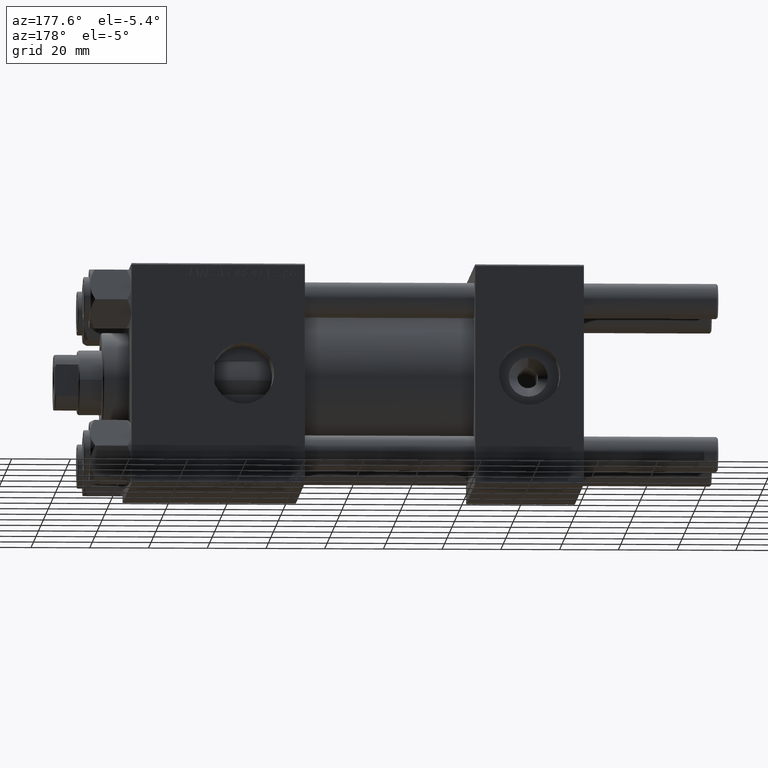
[diagram: clean part render]
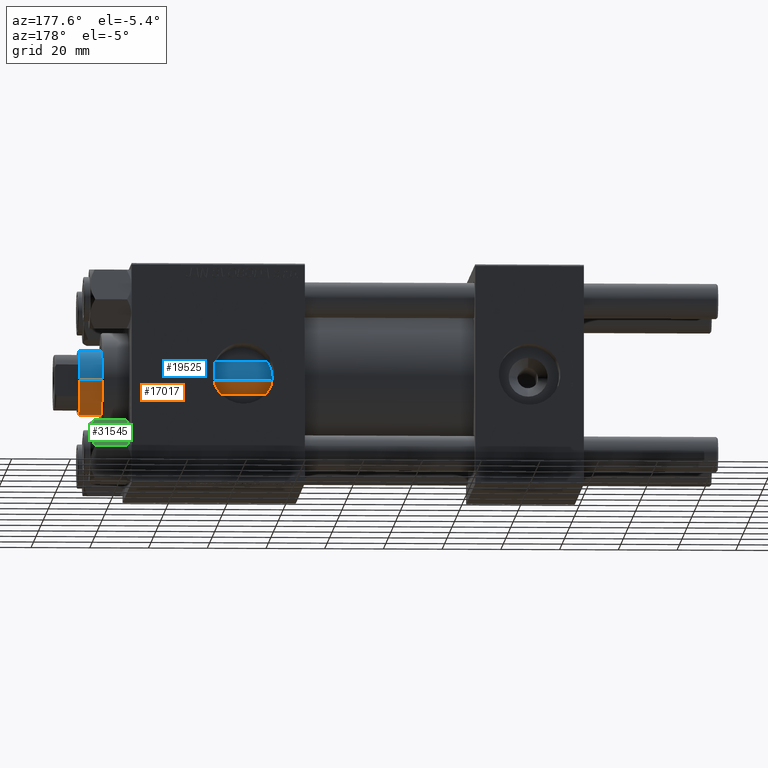
[diagram: same view with three faces highlighted in distinct colors, each labeled with its STEP entity id]
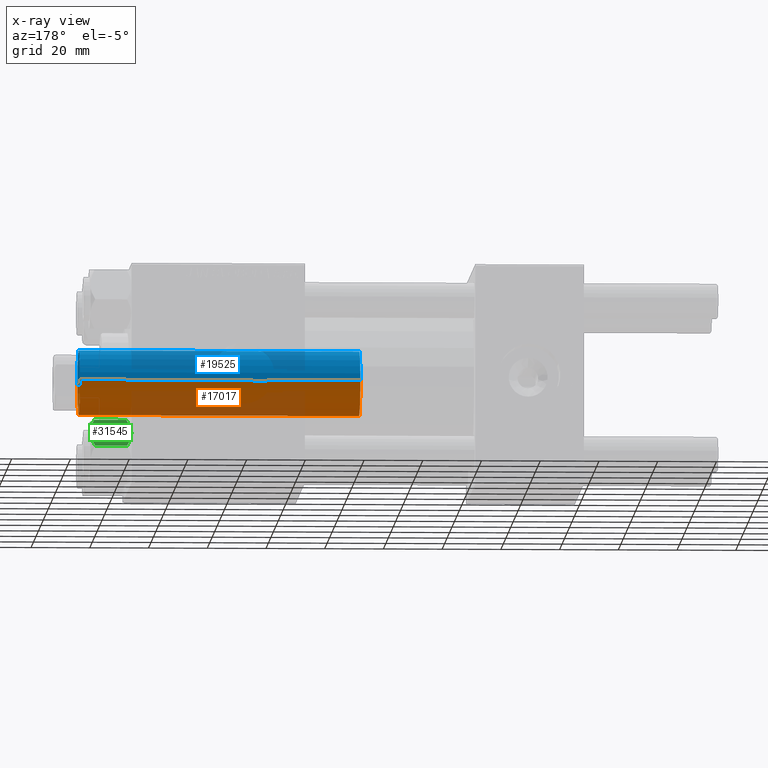
[diagram: x-ray of the same camera — body ghosted, the three highlighted faces saturated]
A machine part, auxiliary view with three faces highlighted in distinct colors.
The next image is the same camera in x-ray (body ghosted, the three faces saturated) — at least one of them is partly hidden behind the body in this view.
Their STEP definitions:

[orange] entity #17017 — the highlighted cylindrical surface (edge-blend (fillet) strip) has radius 11 mm, axis along (-1, 0, 0).
#2279 = VERTEX_POINT ( 'NONE', #15324 ) ;
#3257 = ORIENTED_EDGE ( 'NONE', *, *, #25024, .F. ) ;
#4640 = DIRECTION ( 'NONE',  ( 1.000000000000000000, 0.000000000000000000, 0.000000000000000000 ) ) ;
#6904 = ORIENTED_EDGE ( 'NONE', *, *, #15245, .T. ) ;
#9842 = ORIENTED_EDGE ( 'NONE', *, *, #24039, .T. ) ;
#9852 = VERTEX_POINT ( 'NONE', #18727 ) ;
#11437 = LINE ( 'NONE', #26384, #35604 ) ;
#11529 = VERTEX_POINT ( 'NONE', #35917 ) ;
#12128 = AXIS2_PLACEMENT_3D ( 'NONE', #44595, #37499, #26123 ) ;
#12258 = DIRECTION ( 'NONE',  ( -0.000000000000000000, -0.000000000000000000, -1.000000000000000000 ) ) ;
#15245 = EDGE_CURVE ( 'NONE', #2279, #23155, #39342, .T. ) ;
#15324 = CARTESIAN_POINT ( 'NONE',  ( 11.00000000000000000, 1.347111479062088405E-15, 133.5000000000000000 ) ) ;
#17017 = ADVANCED_FACE ( 'NONE', ( #25153 ), #24907, .T. ) ;
#17550 = CARTESIAN_POINT ( 'NONE',  ( 0.000000000000000000, 0.000000000000000000, 134.0000000000000000 ) ) ;
#18363 = ORIENTED_EDGE ( 'NONE', *, *, #45110, .T. ) ;
#18727 = CARTESIAN_POINT ( 'NONE',  ( -11.00000000000000000, 0.000000000000000000, 133.5000000000000000 ) ) ;
#20109 = CARTESIAN_POINT ( 'NONE',  ( 11.00000000000000000, 1.347111479062088405E-15, 134.0000000000000000 ) ) ;
#21720 = CIRCLE ( 'NONE', #42746, 11.00000000000000000 ) ;
#21997 = CARTESIAN_POINT ( 'NONE',  ( 11.00000000000000000, 1.347111479062088405E-15, 38.00000000000000000 ) ) ;
#23155 = VERTEX_POINT ( 'NONE', #21997 ) ;
#24039 = EDGE_CURVE ( 'NONE', #23155, #11529, #46056, .T. ) ;
#24907 = CYLINDRICAL_SURFACE ( 'NONE', #42723, 11.00000000000000000 ) ;
#25024 = EDGE_CURVE ( 'NONE', #9852, #11529, #11437, .T. ) ;
#25153 = FACE_OUTER_BOUND ( 'NONE', #36281, .T. ) ;
#26123 = DIRECTION ( 'NONE',  ( 1.000000000000000000, 0.000000000000000000, 0.000000000000000000 ) ) ;
#26384 = CARTESIAN_POINT ( 'NONE',  ( -11.00000000000000000, 0.000000000000000000, 134.0000000000000000 ) ) ;
#32989 = DIRECTION ( 'NONE',  ( -1.000000000000000000, 0.000000000000000000, 0.000000000000000000 ) ) ;
#35604 = VECTOR ( 'NONE', #41816, 1000.000000000000000 ) ;
#35917 = CARTESIAN_POINT ( 'NONE',  ( -11.00000000000000000, 0.000000000000000000, 38.00000000000000000 ) ) ;
#36281 = EDGE_LOOP ( 'NONE', ( #18363, #6904, #9842, #3257 ) ) ;
#37499 = DIRECTION ( 'NONE',  ( 0.000000000000000000, 0.000000000000000000, 1.000000000000000000 ) ) ;
#39318 = DIRECTION ( 'NONE',  ( 0.000000000000000000, 0.000000000000000000, -1.000000000000000000 ) ) ;
#39342 = LINE ( 'NONE', #20109, #49928 ) ;
#39827 = CARTESIAN_POINT ( 'NONE',  ( 0.000000000000000000, 0.000000000000000000, 133.5000000000000000 ) ) ;
#41816 = DIRECTION ( 'NONE',  ( -0.000000000000000000, -0.000000000000000000, -1.000000000000000000 ) ) ;
#42723 = AXIS2_PLACEMENT_3D ( 'NONE', #17550, #44874, #32989 ) ;
#42746 = AXIS2_PLACEMENT_3D ( 'NONE', #39827, #39318, #4640 ) ;
#44595 = CARTESIAN_POINT ( 'NONE',  ( 0.000000000000000000, 0.000000000000000000, 38.00000000000000000 ) ) ;
#44874 = DIRECTION ( 'NONE',  ( -0.000000000000000000, -0.000000000000000000, -1.000000000000000000 ) ) ;
#45110 = EDGE_CURVE ( 'NONE', #9852, #2279, #21720, .T. ) ;
#46056 = CIRCLE ( 'NONE', #12128, 11.00000000000000000 ) ;
#49928 = VECTOR ( 'NONE', #12258, 1000.000000000000000 ) ;

[blue] entity #19525 — the highlighted cylindrical surface (edge-blend (fillet) strip) has radius 11 mm, axis along (-1, 0, 0).
#2279 = VERTEX_POINT ( 'NONE', #15324 ) ;
#2990 = EDGE_LOOP ( 'NONE', ( #14944, #20106, #41269, #23965 ) ) ;
#4113 = FACE_OUTER_BOUND ( 'NONE', #2990, .T. ) ;
#7410 = DIRECTION ( 'NONE',  ( -1.000000000000000000, 0.000000000000000000, 0.000000000000000000 ) ) ;
#9852 = VERTEX_POINT ( 'NONE', #18727 ) ;
#11205 = AXIS2_PLACEMENT_3D ( 'NONE', #32754, #13501, #32255 ) ;
#11437 = LINE ( 'NONE', #26384, #35604 ) ;
#11529 = VERTEX_POINT ( 'NONE', #35917 ) ;
#12258 = DIRECTION ( 'NONE',  ( -0.000000000000000000, -0.000000000000000000, -1.000000000000000000 ) ) ;
#13501 = DIRECTION ( 'NONE',  ( 0.000000000000000000, 0.000000000000000000, -1.000000000000000000 ) ) ;
#14944 = ORIENTED_EDGE ( 'NONE', *, *, #15245, .F. ) ;
#15245 = EDGE_CURVE ( 'NONE', #2279, #23155, #39342, .T. ) ;
#15324 = CARTESIAN_POINT ( 'NONE',  ( 11.00000000000000000, 1.347111479062088405E-15, 133.5000000000000000 ) ) ;
#17120 = EDGE_CURVE ( 'NONE', #2279, #9852, #22534, .T. ) ;
#18274 = DIRECTION ( 'NONE',  ( 1.000000000000000000, 0.000000000000000000, 0.000000000000000000 ) ) ;
#18524 = CARTESIAN_POINT ( 'NONE',  ( 0.000000000000000000, 0.000000000000000000, 38.00000000000000000 ) ) ;
#18727 = CARTESIAN_POINT ( 'NONE',  ( -11.00000000000000000, 0.000000000000000000, 133.5000000000000000 ) ) ;
#19525 = ADVANCED_FACE ( 'NONE', ( #4113 ), #42084, .T. ) ;
#20106 = ORIENTED_EDGE ( 'NONE', *, *, #17120, .T. ) ;
#20109 = CARTESIAN_POINT ( 'NONE',  ( 11.00000000000000000, 1.347111479062088405E-15, 134.0000000000000000 ) ) ;
#21997 = CARTESIAN_POINT ( 'NONE',  ( 11.00000000000000000, 1.347111479062088405E-15, 38.00000000000000000 ) ) ;
#22342 = EDGE_CURVE ( 'NONE', #11529, #23155, #47652, .T. ) ;
#22534 = CIRCLE ( 'NONE', #11205, 11.00000000000000000 ) ;
#23155 = VERTEX_POINT ( 'NONE', #21997 ) ;
#23965 = ORIENTED_EDGE ( 'NONE', *, *, #22342, .T. ) ;
#25024 = EDGE_CURVE ( 'NONE', #9852, #11529, #11437, .T. ) ;
#26384 = CARTESIAN_POINT ( 'NONE',  ( -11.00000000000000000, 0.000000000000000000, 134.0000000000000000 ) ) ;
#32255 = DIRECTION ( 'NONE',  ( 1.000000000000000000, 0.000000000000000000, 0.000000000000000000 ) ) ;
#32754 = CARTESIAN_POINT ( 'NONE',  ( 0.000000000000000000, 0.000000000000000000, 133.5000000000000000 ) ) ;
#34477 = CARTESIAN_POINT ( 'NONE',  ( 0.000000000000000000, 0.000000000000000000, 134.0000000000000000 ) ) ;
#35604 = VECTOR ( 'NONE', #41816, 1000.000000000000000 ) ;
#35917 = CARTESIAN_POINT ( 'NONE',  ( -11.00000000000000000, 0.000000000000000000, 38.00000000000000000 ) ) ;
#38753 = AXIS2_PLACEMENT_3D ( 'NONE', #18524, #45084, #18274 ) ;
#39342 = LINE ( 'NONE', #20109, #49928 ) ;
#41173 = AXIS2_PLACEMENT_3D ( 'NONE', #34477, #46626, #7410 ) ;
#41269 = ORIENTED_EDGE ( 'NONE', *, *, #25024, .T. ) ;
#41816 = DIRECTION ( 'NONE',  ( -0.000000000000000000, -0.000000000000000000, -1.000000000000000000 ) ) ;
#42084 = CYLINDRICAL_SURFACE ( 'NONE', #41173, 11.00000000000000000 ) ;
#45084 = DIRECTION ( 'NONE',  ( 0.000000000000000000, 0.000000000000000000, 1.000000000000000000 ) ) ;
#46626 = DIRECTION ( 'NONE',  ( -0.000000000000000000, -0.000000000000000000, -1.000000000000000000 ) ) ;
#47652 = CIRCLE ( 'NONE', #38753, 11.00000000000000000 ) ;
#49928 = VECTOR ( 'NONE', #12258, 1000.000000000000000 ) ;

[green] entity #31545 — the highlighted planar face has unit normal (-0, -0.8135, -0.5816).
#1864 = AXIS2_PLACEMENT_3D ( 'NONE', #29934, #14234, #33706 ) ;
#3177 = ORIENTED_EDGE ( 'NONE', *, *, #10143, .T. ) ;
#3394 = CARTESIAN_POINT ( 'NONE',  ( -7.700834831386347723, 6.788193195293092508, -0.1903979688073504373 ) ) ;
#3725 = CARTESIAN_POINT ( 'NONE',  ( -5.810000000000003162, 10.06321519197517667, -1.556784808024824107 ) ) ;
#4157 = CARTESIAN_POINT ( 'NONE',  ( -11.61999999999999922, 6.036006524886462134E-17, -14.00000000000000000 ) ) ;
#4441 = CARTESIAN_POINT ( 'NONE',  ( -8.714999999999996305, 5.031607595987583004, -14.00000000000000000 ) ) ;
#4469 = LINE ( 'NONE', #11044, #42431 ) ;
#4862 = VERTEX_POINT ( 'NONE', #34359 ) ;
#6374 = CARTESIAN_POINT ( 'NONE',  ( -8.714999999999996305, 5.031607595987583004, 0.000000000000000000 ) ) ;
#7678 = CARTESIAN_POINT ( 'NONE',  ( -8.714999999999996305, 5.031607595987583004, 0.000000000000000000 ) ) ;
#7724 = CARTESIAN_POINT ( 'NONE',  ( -6.265018354709781079, 9.275100283241448196, -12.89823354668503974 ) ) ;
#8653 = VERTEX_POINT ( 'NONE', #14452 ) ;
#9336 = B_SPLINE_CURVE_WITH_KNOTS ( 'NONE', 3,
 ( #6374, #42054, #45082, #21814, #45842, #22318 ),
 .UNSPECIFIED., .F., .F.,
 ( 4, 2, 4 ),
 ( 0.006022845781655588975, 0.009013049135303633289, 0.01200325248895167847 ),
 .UNSPECIFIED. ) ;
#9664 = B_SPLINE_CURVE_WITH_KNOTS ( 'NONE', 3,
 ( #47770, #13079, #28773, #31832, #39669, #23972, #20437, #47511 ),
 .UNSPECIFIED., .F., .F.,
 ( 4, 2, 2, 4 ),
 ( 2.544312114905219494E-07, 0.003011550106433534719, 0.004517197944044558378, 0.006022845781655582036 ),
 .UNSPECIFIED. ) ;
#10143 = EDGE_CURVE ( 'NONE', #4862, #28549, #19341, .T. ) ;
#11044 = CARTESIAN_POINT ( 'NONE',  ( -5.810000000000003162, 10.06321519197517667, -14.00000000000000000 ) ) ;
#11212 = CARTESIAN_POINT ( 'NONE',  ( -7.455303369716808959, 7.213466161761383333, -0.3002673809867471566 ) ) ;
#11579 = VECTOR ( 'NONE', #30996, 1000.000000000000000 ) ;
#13075 = VERTEX_POINT ( 'NONE', #18902 ) ;
#13079 = CARTESIAN_POINT ( 'NONE',  ( -11.16445427487471775, 0.7890283410877965142, -12.89876091710046069 ) ) ;
#13757 = EDGE_CURVE ( 'NONE', #8653, #28549, #9336, .T. ) ;
#14234 = DIRECTION ( 'NONE',  ( 0.8660254037844388186, -0.4999999999999996669, 0.000000000000000000 ) ) ;
#14452 = CARTESIAN_POINT ( 'NONE',  ( -8.714999999999996305, 5.031607595987583004, 0.000000000000000000 ) ) ;
#14895 = VERTEX_POINT ( 'NONE', #3725 ) ;
#15687 = ORIENTED_EDGE ( 'NONE', *, *, #43710, .F. ) ;
#15748 = EDGE_LOOP ( 'NONE', ( #35623, #3177, #21789, #25963, #18427, #15687 ) ) ;
#18324 = CARTESIAN_POINT ( 'NONE',  ( -6.731401448974991375, 8.467301068182912616, -0.7141438259524754972 ) ) ;
#18427 = ORIENTED_EDGE ( 'NONE', *, *, #36274, .F. ) ;
#18902 = CARTESIAN_POINT ( 'NONE',  ( -5.810000000000004050, 10.06321519197517667, -12.44321519197517745 ) ) ;
#19341 = LINE ( 'NONE', #4157, #11579 ) ;
#19884 = CARTESIAN_POINT ( 'NONE',  ( -7.713000053756310592, 6.767122412062951398, -13.84547602999601068 ) ) ;
#20437 = CARTESIAN_POINT ( 'NONE',  ( -8.969430103550386946, 4.590921729663310913, -13.99999999999999289 ) ) ;
#21789 = ORIENTED_EDGE ( 'NONE', *, *, #13757, .F. ) ;
#21814 = CARTESIAN_POINT ( 'NONE',  ( -10.69662495661650325, 1.599332489581332339, -0.7114554706434570441 ) ) ;
#22318 = CARTESIAN_POINT ( 'NONE',  ( -11.61999999999999922, -1.565987599140169687E-18, -1.556784808024820776 ) ) ;
#23403 = VERTEX_POINT ( 'NONE', #23995 ) ;
#23972 = CARTESIAN_POINT ( 'NONE',  ( -9.227666995912102266, 4.143642311704122783, -13.96005881939308502 ) ) ;
#23995 = CARTESIAN_POINT ( 'NONE',  ( -8.714999999999996305, 5.031607595987583004, -14.00000000000000000 ) ) ;
#25806 = CARTESIAN_POINT ( 'NONE',  ( -11.61999999999999922, -1.565987599140169687E-18, -1.556784808024820776 ) ) ;
#25963 = ORIENTED_EDGE ( 'NONE', *, *, #49676, .F. ) ;
#27499 = DIRECTION ( 'NONE',  ( -0.000000000000000000, -0.000000000000000000, 1.000000000000000000 ) ) ;
#28549 = VERTEX_POINT ( 'NONE', #25806 ) ;
#28773 = CARTESIAN_POINT ( 'NONE',  ( -10.69859855102501278, 1.595914123792263162, -13.28585617404753094 ) ) ;
#29934 = CARTESIAN_POINT ( 'NONE',  ( -11.61999999999999922, 6.036006524886462134E-17, -14.00000000000000000 ) ) ;
#30231 = CARTESIAN_POINT ( 'NONE',  ( -5.810000000000003162, 10.06321519197517667, -1.556784808024824107 ) ) ;
#30471 = CARTESIAN_POINT ( 'NONE',  ( -6.265545725125286403, 9.274186850887382150, -1.101239082899542421 ) ) ;
#30931 = B_SPLINE_CURVE_WITH_KNOTS ( 'NONE', 3,
 ( #4441, #42156, #19884, #35053, #7724, #35300 ),
 .UNSPECIFIED., .F., .F.,
 ( 4, 2, 4 ),
 ( 0.006022845781655582036, 0.009013049135303628084, 0.01200325248895167327 ),
 .UNSPECIFIED. ) ;
#30996 = DIRECTION ( 'NONE',  ( -0.000000000000000000, -0.000000000000000000, 1.000000000000000000 ) ) ;
#31545 = ADVANCED_FACE ( 'NONE', ( #41321 ), #48174, .F. ) ;
#31832 = CARTESIAN_POINT ( 'NONE',  ( -9.974696630283190757, 2.849749030213791556, -13.69973261901325223 ) ) ;
#33706 = DIRECTION ( 'NONE',  ( 0.4999999999999996669, 0.8660254037844388186, 0.000000000000000000 ) ) ;
#34256 = CARTESIAN_POINT ( 'NONE',  ( -8.460569896449618099, 5.472293462311861312, -4.841640326505579160E-15 ) ) ;
#34359 = CARTESIAN_POINT ( 'NONE',  ( -11.61999999999999922, 4.243578825136429979E-17, -12.44321519197517922 ) ) ;
#35053 = CARTESIAN_POINT ( 'NONE',  ( -6.733375043383501790, 8.463882702393842550, -13.28854452935654251 ) ) ;
#35300 = CARTESIAN_POINT ( 'NONE',  ( -5.810000000000004050, 10.06321519197517667, -12.44321519197517745 ) ) ;
#35623 = ORIENTED_EDGE ( 'NONE', *, *, #42788, .F. ) ;
#36274 = EDGE_CURVE ( 'NONE', #13075, #14895, #4469, .T. ) ;
#39654 = B_SPLINE_CURVE_WITH_KNOTS ( 'NONE', 3,
 ( #30231, #30471, #18324, #11212, #3394, #41611, #34256, #7678 ),
 .UNSPECIFIED., .F., .F.,
 ( 4, 2, 2, 4 ),
 ( 2.544312114906334931E-07, 0.003011550106433540791, 0.004517197944044565316, 0.006022845781655588975 ),
 .UNSPECIFIED. ) ;
#39669 = CARTESIAN_POINT ( 'NONE',  ( -9.729165168613654657, 3.275021996682081049, -13.80960203119265195 ) ) ;
#41321 = FACE_OUTER_BOUND ( 'NONE', #15748, .T. ) ;
#41611 = CARTESIAN_POINT ( 'NONE',  ( -8.202333004087902779, 5.919572880271050330, -0.03994118060691660005 ) ) ;
#42054 = CARTESIAN_POINT ( 'NONE',  ( -9.220295946303432189, 4.156409344131450467, -4.650210880426107284E-15 ) ) ;
#42156 = CARTESIAN_POINT ( 'NONE',  ( -8.209704053696571080, 5.906805847843720869, -13.99999999999999112 ) ) ;
#42431 = VECTOR ( 'NONE', #27499, 1000.000000000000000 ) ;
#42788 = EDGE_CURVE ( 'NONE', #4862, #23403, #9664, .T. ) ;
#43710 = EDGE_CURVE ( 'NONE', #23403, #13075, #30931, .T. ) ;
#45082 = CARTESIAN_POINT ( 'NONE',  ( -9.716999946243696229, 3.296092779912225712, -0.1545239700039918174 ) ) ;
#45842 = CARTESIAN_POINT ( 'NONE',  ( -11.16498164529022219, 0.7881149087337291359, -1.101766453314959815 ) ) ;
#47511 = CARTESIAN_POINT ( 'NONE',  ( -8.714999999999996305, 5.031607595987583004, -14.00000000000000000 ) ) ;
#47770 = CARTESIAN_POINT ( 'NONE',  ( -11.61999999999999922, 4.243578825136429979E-17, -12.44321519197517922 ) ) ;
#48174 = PLANE ( 'NONE',  #1864 ) ;
#49676 = EDGE_CURVE ( 'NONE', #14895, #8653, #39654, .T. ) ;